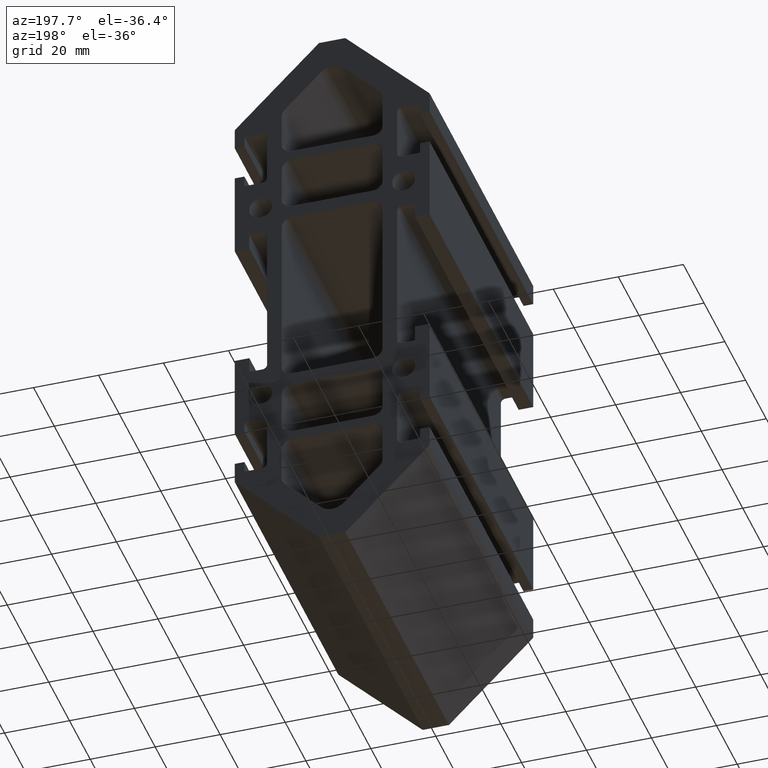
[diagram: clean part render]
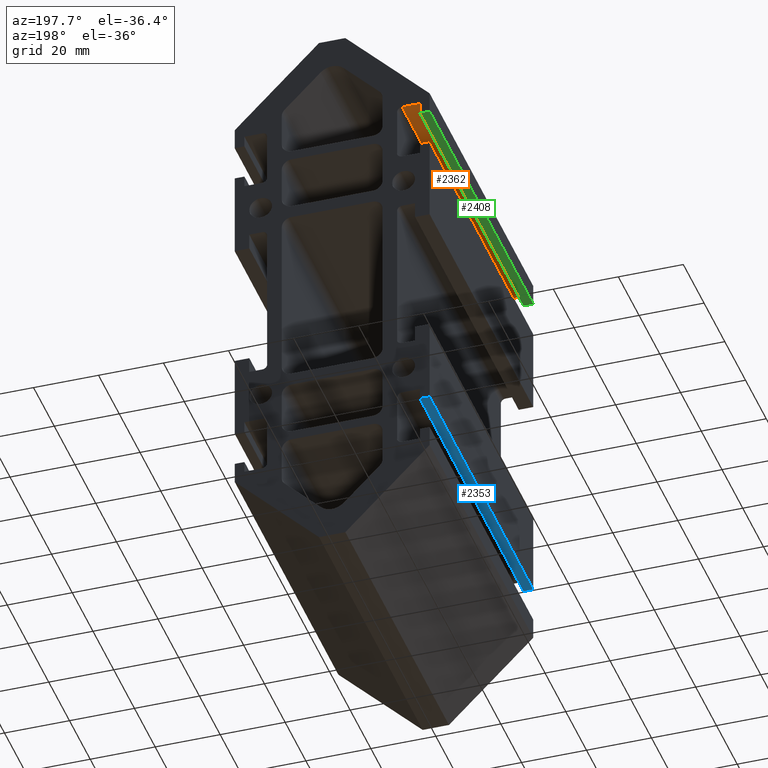
[diagram: same view with three faces highlighted in distinct colors, each labeled with its STEP entity id]
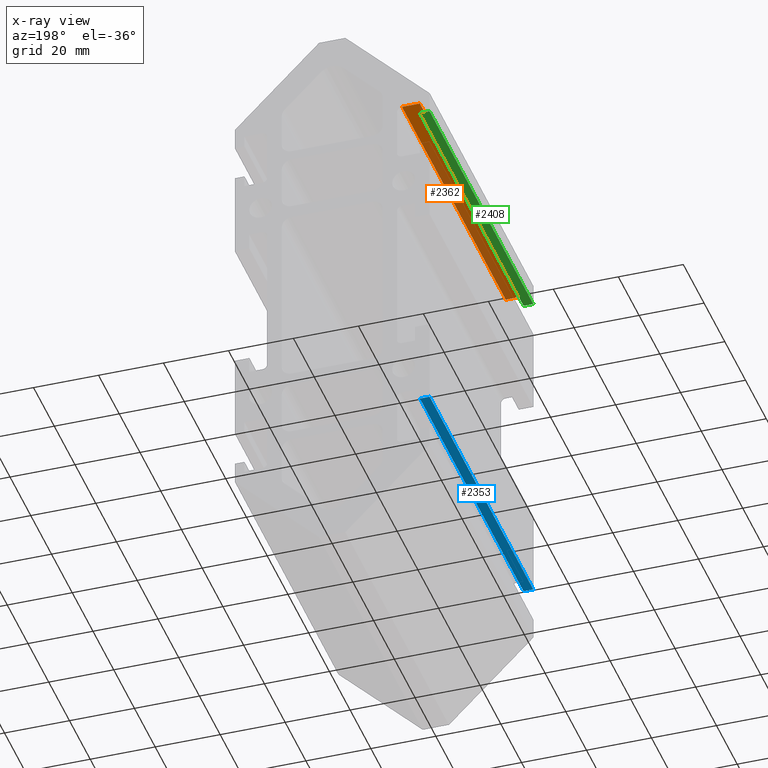
[diagram: x-ray of the same camera — body ghosted, the three highlighted faces saturated]
A machine part, auxiliary view with three faces highlighted in distinct colors.
The next image is the same camera in x-ray (body ghosted, the three faces saturated) — at least one of them is partly hidden behind the body in this view.
Their STEP definitions:

[orange] entity #2362 — the highlighted planar face has unit normal (0, 0, -1).
#72=PLANE('',#2547);
#174=FACE_OUTER_BOUND('',#292,.T.);
#292=EDGE_LOOP('',(#1811,#1812,#1813,#1814));
#508=LINE('',#3673,#780);
#510=LINE('',#3679,#782);
#511=LINE('',#3681,#783);
#512=LINE('',#3682,#784);
#780=VECTOR('',#2987,10.);
#782=VECTOR('',#2993,10.);
#783=VECTOR('',#2994,10.);
#784=VECTOR('',#2995,10.);
#1114=VERTEX_POINT('',#3670);
#1115=VERTEX_POINT('',#3672);
#1117=VERTEX_POINT('',#3678);
#1118=VERTEX_POINT('',#3680);
#1403=EDGE_CURVE('',#1114,#1115,#508,.T.);
#1406=EDGE_CURVE('',#1117,#1114,#510,.T.);
#1407=EDGE_CURVE('',#1117,#1118,#511,.T.);
#1408=EDGE_CURVE('',#1115,#1118,#512,.T.);
#1811=ORIENTED_EDGE('',*,*,#1403,.F.);
#1812=ORIENTED_EDGE('',*,*,#1406,.F.);
#1813=ORIENTED_EDGE('',*,*,#1407,.T.);
#1814=ORIENTED_EDGE('',*,*,#1408,.F.);
#2362=ADVANCED_FACE('',(#174),#72,.T.);
#2547=AXIS2_PLACEMENT_3D('',#3677,#2991,#2992);
#2987=DIRECTION('',(0.,1.,0.));
#2991=DIRECTION('center_axis',(1.26882631385732E-15,0.,-1.));
#2992=DIRECTION('ref_axis',(-1.,0.,-1.26882631385732E-15));
#2993=DIRECTION('',(1.,0.,1.26882631385732E-15));
#2994=DIRECTION('',(0.,1.,0.));
#2995=DIRECTION('',(-1.,0.,-1.26882631385732E-15));
#3670=CARTESIAN_POINT('',(-21.5,0.,61.));
#3672=CARTESIAN_POINT('',(-21.5,100.,61.));
#3673=CARTESIAN_POINT('',(-21.5,0.,61.));
#3677=CARTESIAN_POINT('Origin',(-20.,0.,61.));
#3678=CARTESIAN_POINT('',(-27.,0.,61.));
#3679=CARTESIAN_POINT('',(-27.,0.,61.));
#3680=CARTESIAN_POINT('',(-27.,100.,61.));
#3681=CARTESIAN_POINT('',(-27.,0.,61.));
#3682=CARTESIAN_POINT('',(-27.,100.,61.));

[blue] entity #2353 — the highlighted planar face has unit normal (0, 0, 1).
#66=PLANE('',#2532);
#165=FACE_OUTER_BOUND('',#283,.T.);
#283=EDGE_LOOP('',(#1775,#1776,#1777,#1778));
#486=LINE('',#3618,#758);
#488=LINE('',#3622,#760);
#489=LINE('',#3624,#761);
#490=LINE('',#3625,#762);
#758=VECTOR('',#2937,10.);
#760=VECTOR('',#2941,10.);
#761=VECTOR('',#2942,10.);
#762=VECTOR('',#2943,10.);
#1095=VERTEX_POINT('',#3615);
#1096=VERTEX_POINT('',#3617);
#1097=VERTEX_POINT('',#3621);
#1098=VERTEX_POINT('',#3623);
#1376=EDGE_CURVE('',#1095,#1096,#486,.T.);
#1378=EDGE_CURVE('',#1095,#1097,#488,.T.);
#1379=EDGE_CURVE('',#1097,#1098,#489,.T.);
#1380=EDGE_CURVE('',#1098,#1096,#490,.T.);
#1775=ORIENTED_EDGE('',*,*,#1378,.T.);
#1776=ORIENTED_EDGE('',*,*,#1379,.T.);
#1777=ORIENTED_EDGE('',*,*,#1380,.T.);
#1778=ORIENTED_EDGE('',*,*,#1376,.F.);
#2353=ADVANCED_FACE('',(#165),#66,.F.);
#2532=AXIS2_PLACEMENT_3D('',#3620,#2939,#2940);
#2937=DIRECTION('',(0.,1.,0.));
#2939=DIRECTION('center_axis',(6.97159890834733E-15,0.,1.));
#2940=DIRECTION('ref_axis',(1.,0.,-6.97159890834733E-15));
#2941=DIRECTION('',(-1.,0.,6.97159890834733E-15));
#2942=DIRECTION('',(0.,1.,0.));
#2943=DIRECTION('',(1.,0.,-6.97159890834733E-15));
#3615=CARTESIAN_POINT('',(-27.0000000000003,0.,-46.5));
#3617=CARTESIAN_POINT('',(-27.0000000000003,100.,-46.5));
#3618=CARTESIAN_POINT('',(-27.0000000000003,0.,-46.5));
#3620=CARTESIAN_POINT('Origin',(-30.0000000000003,0.,-46.4999999999999));
#3621=CARTESIAN_POINT('',(-30.0000000000003,0.,-46.4999999999999));
#3622=CARTESIAN_POINT('',(-27.0000000000003,0.,-46.5));
#3623=CARTESIAN_POINT('',(-30.0000000000003,100.,-46.4999999999999));
#3624=CARTESIAN_POINT('',(-30.0000000000003,0.,-46.4999999999999));
#3625=CARTESIAN_POINT('',(-27.0000000000003,100.,-46.5));

[green] entity #2408 — the highlighted planar face has unit normal (0, 0, -1).
#102=PLANE('',#2625);
#220=FACE_OUTER_BOUND('',#338,.T.);
#338=EDGE_LOOP('',(#1995,#1996,#1997,#1998));
#614=LINE('',#3949,#886);
#615=LINE('',#3952,#887);
#616=LINE('',#3954,#888);
#617=LINE('',#3955,#889);
#886=VECTOR('',#3251,10.);
#887=VECTOR('',#3254,10.);
#888=VECTOR('',#3255,10.);
#889=VECTOR('',#3256,10.);
#1205=VERTEX_POINT('',#3945);
#1206=VERTEX_POINT('',#3947);
#1207=VERTEX_POINT('',#3951);
#1208=VERTEX_POINT('',#3953);
#1542=EDGE_CURVE('',#1205,#1206,#614,.T.);
#1543=EDGE_CURVE('',#1205,#1207,#615,.T.);
#1544=EDGE_CURVE('',#1208,#1206,#616,.T.);
#1545=EDGE_CURVE('',#1207,#1208,#617,.T.);
#1995=ORIENTED_EDGE('',*,*,#1543,.F.);
#1996=ORIENTED_EDGE('',*,*,#1542,.T.);
#1997=ORIENTED_EDGE('',*,*,#1544,.F.);
#1998=ORIENTED_EDGE('',*,*,#1545,.F.);
#2408=ADVANCED_FACE('',(#220),#102,.T.);
#2625=AXIS2_PLACEMENT_3D('',#3950,#3252,#3253);
#3251=DIRECTION('',(0.,1.,0.));
#3252=DIRECTION('center_axis',(0.,0.,-1.));
#3253=DIRECTION('ref_axis',(-1.,0.,0.));
#3254=DIRECTION('',(1.,0.,0.));
#3255=DIRECTION('',(-1.,0.,0.));
#3256=DIRECTION('',(0.,1.,0.));
#3945=CARTESIAN_POINT('',(-30.,0.,57.5));
#3947=CARTESIAN_POINT('',(-30.,100.,57.5));
#3949=CARTESIAN_POINT('',(-30.,0.,57.5));
#3950=CARTESIAN_POINT('Origin',(-27.,0.,57.5));
#3951=CARTESIAN_POINT('',(-27.,0.,57.5));
#3952=CARTESIAN_POINT('',(-30.,0.,57.5));
#3953=CARTESIAN_POINT('',(-27.,100.,57.5));
#3954=CARTESIAN_POINT('',(-30.,100.,57.5));
#3955=CARTESIAN_POINT('',(-27.,0.,57.5));